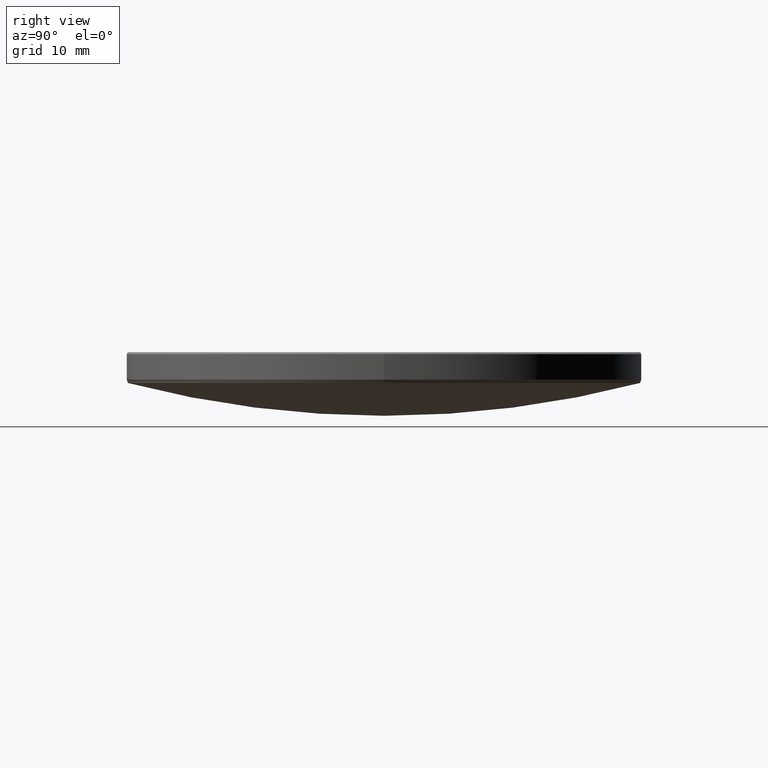
[diagram: clean part render]
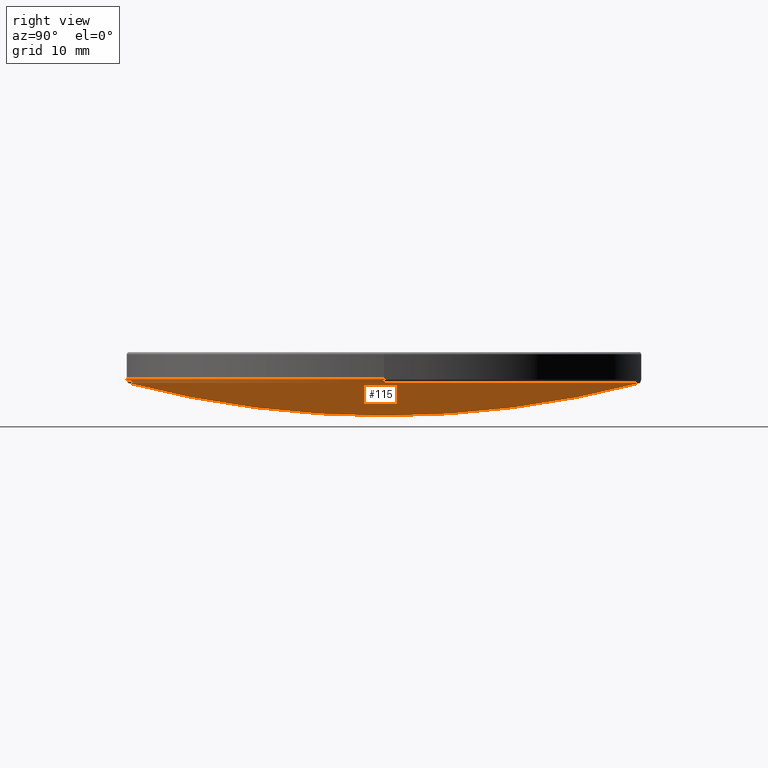
[diagram: same view with one face highlighted and labeled with its STEP entity id]
A machine part, right view. The second image highlights one B-rep face of the part: STEP entity #115.
In plain terms, the highlighted spherical surface has radius 100.08 mm.
Its self-contained STEP definition (entity closure, byte-faithful):
#6 = EDGE_CURVE ( 'NONE', #18, #192, #241, .T. ) ;
#8 = DIRECTION ( 'NONE',  ( -1.000000000000000000, 0.000000000000000000, 0.000000000000000000 ) ) ;
#18 = VERTEX_POINT ( 'NONE', #206 ) ;
#27 = ORIENTED_EDGE ( 'NONE', *, *, #204, .T. ) ;
#66 = EDGE_CURVE ( 'NONE', #192, #174, #191, .T. ) ;
#70 = CARTESIAN_POINT ( 'NONE',  ( 0.000000000000000000, 0.000000000000000000, 12.94948413701273182 ) ) ;
#82 = CARTESIAN_POINT ( 'NONE',  ( 0.000000000000000000, 0.000000000000000000, 12.94948413701273182 ) ) ;
#87 = VERTEX_POINT ( 'NONE', #295 ) ;
#88 = AXIS2_PLACEMENT_3D ( 'NONE', #82, #194, #91 ) ;
#91 = DIRECTION ( 'NONE',  ( 1.000000000000000000, 0.000000000000000000, 0.000000000000000000 ) ) ;
#112 = CARTESIAN_POINT ( 'NONE',  ( -3.086929319406547016E-15, -25.20669079081240582, 12.94948413701272472 ) ) ;
#115 = ADVANCED_FACE ( 'NONE', ( #119 ), #267, .T. ) ;
#117 = DIRECTION ( 'NONE',  ( 0.000000000000000000, 1.000000000000000000, 0.000000000000000000 ) ) ;
#118 = AXIS2_PLACEMENT_3D ( 'NONE', #139, #8, #117 ) ;
#119 = FACE_OUTER_BOUND ( 'NONE', #286, .T. ) ;
#122 = DIRECTION ( 'NONE',  ( -1.000000000000000000, 1.224646799147353207E-16, 0.000000000000000000 ) ) ;
#126 = DIRECTION ( 'NONE',  ( 1.000000000000000000, -0.000000000000000000, 0.000000000000000000 ) ) ;
#130 = ORIENTED_EDGE ( 'NONE', *, *, #6, .T. ) ;
#137 = CARTESIAN_POINT ( 'NONE',  ( 25.20669079081242003, 0.000000000000000000, 12.94948413701273182 ) ) ;
#139 = CARTESIAN_POINT ( 'NONE',  ( 0.000000000000000000, 0.000000000000000000, 109.8031321807306142 ) ) ;
#145 = CARTESIAN_POINT ( 'NONE',  ( 0.000000000000000000, 0.000000000000000000, 109.8031321807306142 ) ) ;
#170 = ORIENTED_EDGE ( 'NONE', *, *, #66, .T. ) ;
#174 = VERTEX_POINT ( 'NONE', #112 ) ;
#179 = ORIENTED_EDGE ( 'NONE', *, *, #327, .F. ) ;
#191 = CIRCLE ( 'NONE', #88, 25.20669079081241648 ) ;
#192 = VERTEX_POINT ( 'NONE', #137 ) ;
#194 = DIRECTION ( 'NONE',  ( 0.000000000000000000, 0.000000000000000000, -1.000000000000000000 ) ) ;
#195 = CIRCLE ( 'NONE', #219, 100.0800000000000125 ) ;
#201 = DIRECTION ( 'NONE',  ( -1.224646799147353207E-16, -1.000000000000000000, 0.000000000000000000 ) ) ;
#204 = EDGE_CURVE ( 'NONE', #87, #18, #261, .T. ) ;
#206 = CARTESIAN_POINT ( 'NONE',  ( 0.000000000000000000, 25.20669079081240582, 12.94948413701272472 ) ) ;
#217 = AXIS2_PLACEMENT_3D ( 'NONE', #243, #126, #284 ) ;
#219 = AXIS2_PLACEMENT_3D ( 'NONE', #145, #122, #201 ) ;
#226 = AXIS2_PLACEMENT_3D ( 'NONE', #70, #272, #332 ) ;
#241 = CIRCLE ( 'NONE', #226, 25.20669079081241648 ) ;
#243 = CARTESIAN_POINT ( 'NONE',  ( 0.000000000000000000, 0.000000000000000000, 109.8031321807306142 ) ) ;
#261 = CIRCLE ( 'NONE', #217, 100.0800000000000125 ) ;
#267 = SPHERICAL_SURFACE ( 'NONE', #118, 100.0800000000000125 ) ;
#272 = DIRECTION ( 'NONE',  ( 0.000000000000000000, 0.000000000000000000, -1.000000000000000000 ) ) ;
#284 = DIRECTION ( 'NONE',  ( 0.000000000000000000, 0.000000000000000000, -1.000000000000000000 ) ) ;
#286 = EDGE_LOOP ( 'NONE', ( #179, #27, #130, #170 ) ) ;
#295 = CARTESIAN_POINT ( 'NONE',  ( 0.000000000000000000, 6.128132582933356375E-15, 9.723132180730592822 ) ) ;
#327 = EDGE_CURVE ( 'NONE', #87, #174, #195, .T. ) ;
#332 = DIRECTION ( 'NONE',  ( 1.000000000000000000, 0.000000000000000000, 0.000000000000000000 ) ) ;